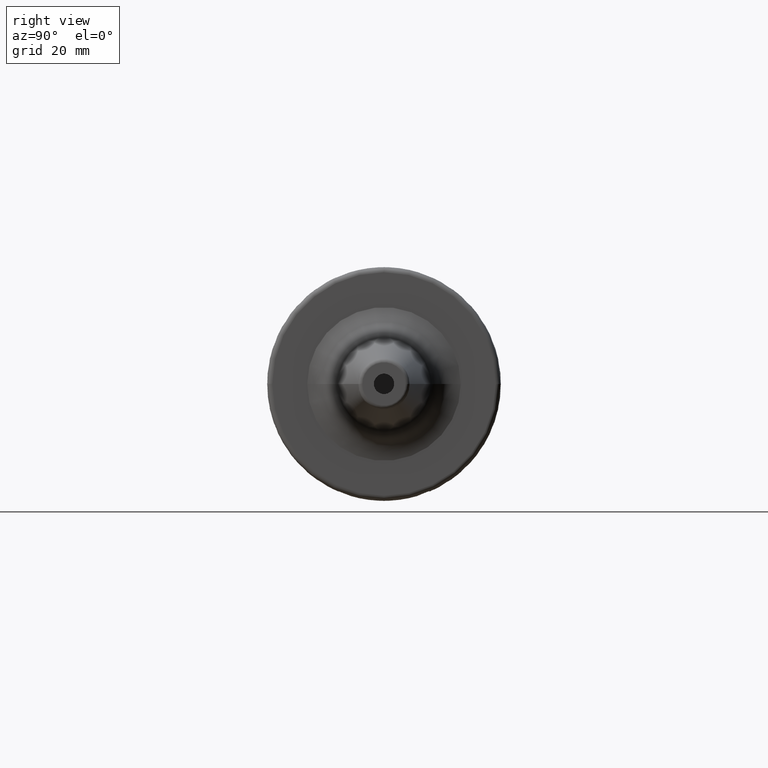
[diagram: clean part render]
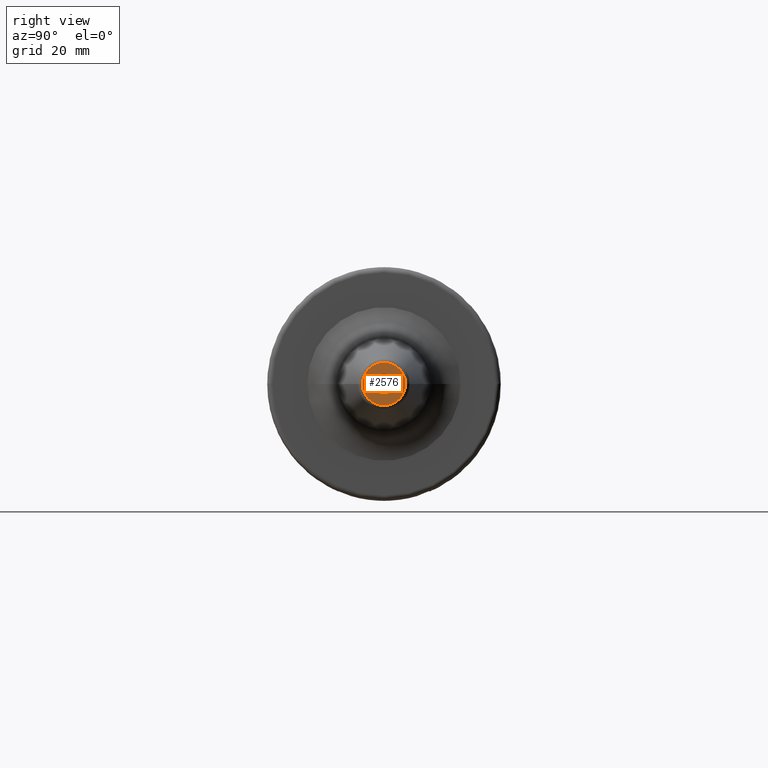
[diagram: same view with one face highlighted and labeled with its STEP entity id]
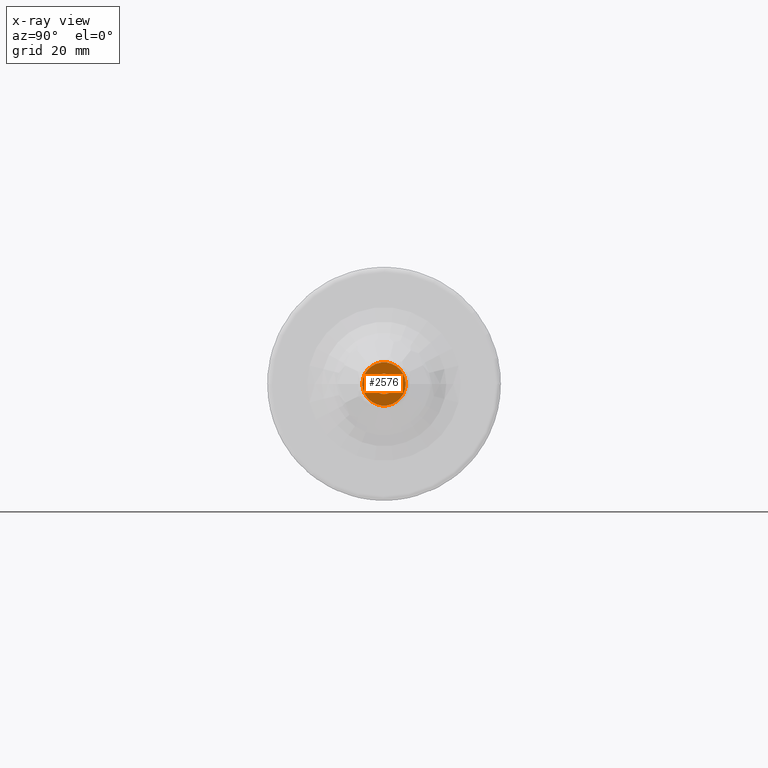
[diagram: x-ray of the same camera — body ghosted, the highlighted face saturated]
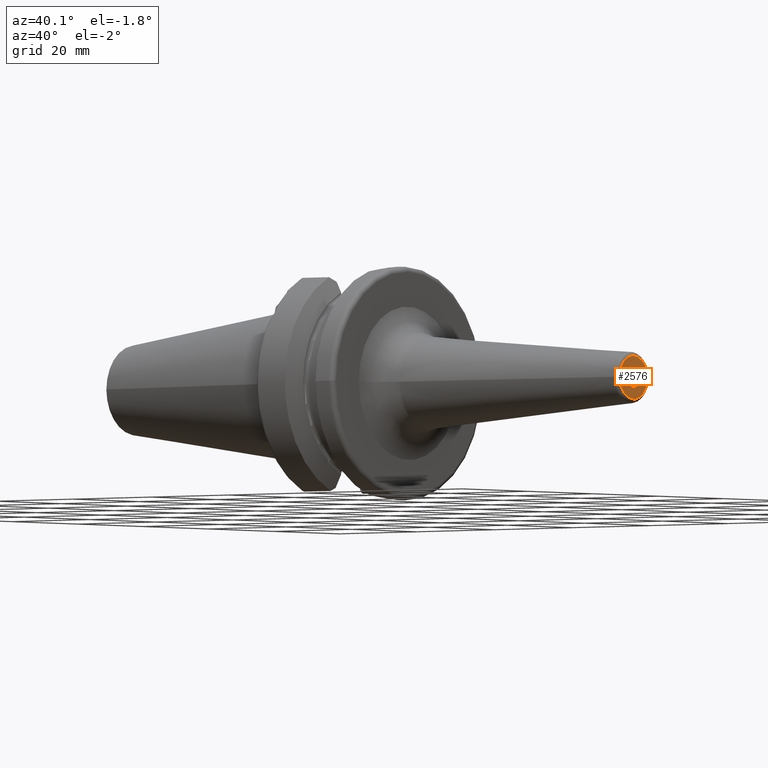
[diagram: same view with one face highlighted and labeled with its STEP entity id]
A machine part, right view. The second image highlights one B-rep face of the part: STEP entity #2576.
The next image is the same camera in x-ray: the body ghosted, the highlighted face saturated — about 0% of this face is hidden behind the body in this view.
A second angle (auxiliary view) of the same face is appended — the face is thin or edge-on in the first view.
In plain terms, the highlighted planar face has unit normal (1, 0, 0).
Its self-contained STEP definition (entity closure, byte-faithful):
#880=CARTESIAN_POINT('',(8.E1,0.E0,0.E0));
#881=DIRECTION('',(-1.E0,0.E0,0.E0));
#882=DIRECTION('',(0.E0,-1.E0,0.E0));
#883=AXIS2_PLACEMENT_3D('',#880,#881,#882);
#885=CARTESIAN_POINT('',(8.E1,0.E0,0.E0));
#886=DIRECTION('',(-1.E0,0.E0,0.E0));
#887=DIRECTION('',(0.E0,1.E0,0.E0));
#888=AXIS2_PLACEMENT_3D('',#885,#886,#887);
#890=CARTESIAN_POINT('',(8.E1,0.E0,0.E0));
#891=DIRECTION('',(-1.E0,0.E0,0.E0));
#892=DIRECTION('',(0.E0,1.E0,0.E0));
#893=AXIS2_PLACEMENT_3D('',#890,#891,#892);
#895=CARTESIAN_POINT('',(8.E1,0.E0,0.E0));
#896=DIRECTION('',(-1.E0,0.E0,0.E0));
#897=DIRECTION('',(0.E0,-1.E0,0.E0));
#898=AXIS2_PLACEMENT_3D('',#895,#896,#897);
#1361=CARTESIAN_POINT('',(8.E1,-2.E0,0.E0));
#1362=CARTESIAN_POINT('',(8.E1,2.E0,0.E0));
#1363=VERTEX_POINT('',#1361);
#1364=VERTEX_POINT('',#1362);
#1369=CARTESIAN_POINT('',(8.E1,4.260487606673E0,0.E0));
#1370=CARTESIAN_POINT('',(8.E1,-4.260487606673E0,0.E0));
#1371=VERTEX_POINT('',#1369);
#1372=VERTEX_POINT('',#1370);
#2561=CARTESIAN_POINT('',(8.E1,0.E0,0.E0));
#2562=DIRECTION('',(1.E0,0.E0,0.E0));
#2563=DIRECTION('',(0.E0,-1.E0,0.E0));
#2564=AXIS2_PLACEMENT_3D('',#2561,#2562,#2563);
#2565=PLANE('',#2564);
#2566=ORIENTED_EDGE('',*,*,#2543,.T.);
#2567=ORIENTED_EDGE('',*,*,#2528,.T.);
#2568=EDGE_LOOP('',(#2566,#2567));
#2569=FACE_OUTER_BOUND('',#2568,.F.);
#2571=ORIENTED_EDGE('',*,*,#2570,.F.);
#2573=ORIENTED_EDGE('',*,*,#2572,.F.);
#2574=EDGE_LOOP('',(#2571,#2573));
#2575=FACE_BOUND('',#2574,.F.);
#2576=ADVANCED_FACE('',(#2569,#2575),#2565,.T.);
#884=CIRCLE('',#883,2.E0);
#889=CIRCLE('',#888,2.E0);
#894=CIRCLE('',#893,4.260487606673E0);
#899=CIRCLE('',#898,4.260487606673E0);
#2528=EDGE_CURVE('',#1372,#1371,#899,.T.);
#2543=EDGE_CURVE('',#1371,#1372,#894,.T.);
#2570=EDGE_CURVE('',#1363,#1364,#884,.T.);
#2572=EDGE_CURVE('',#1364,#1363,#889,.T.);